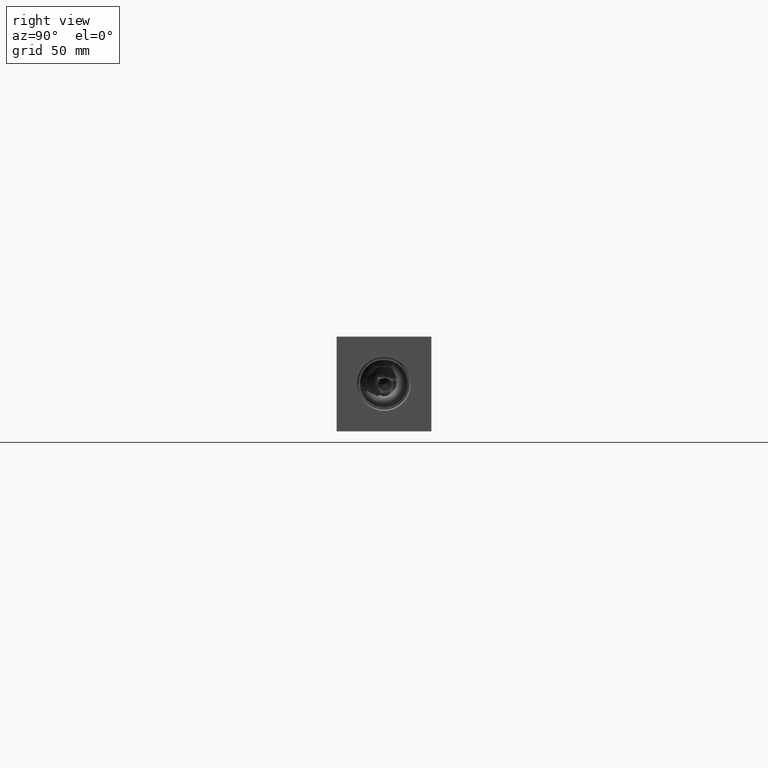
[diagram: clean part render]
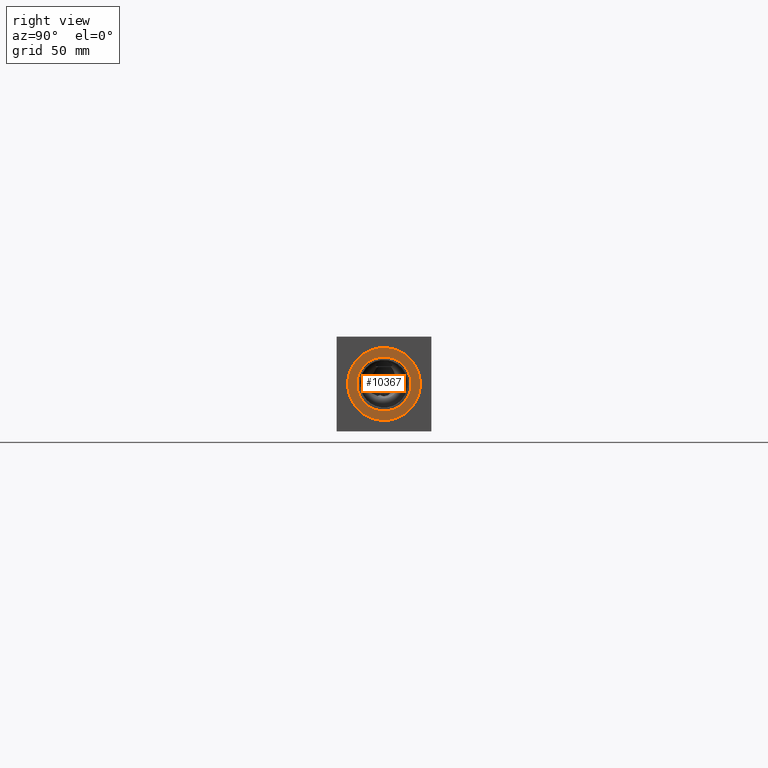
[diagram: same view with one face highlighted and labeled with its STEP entity id]
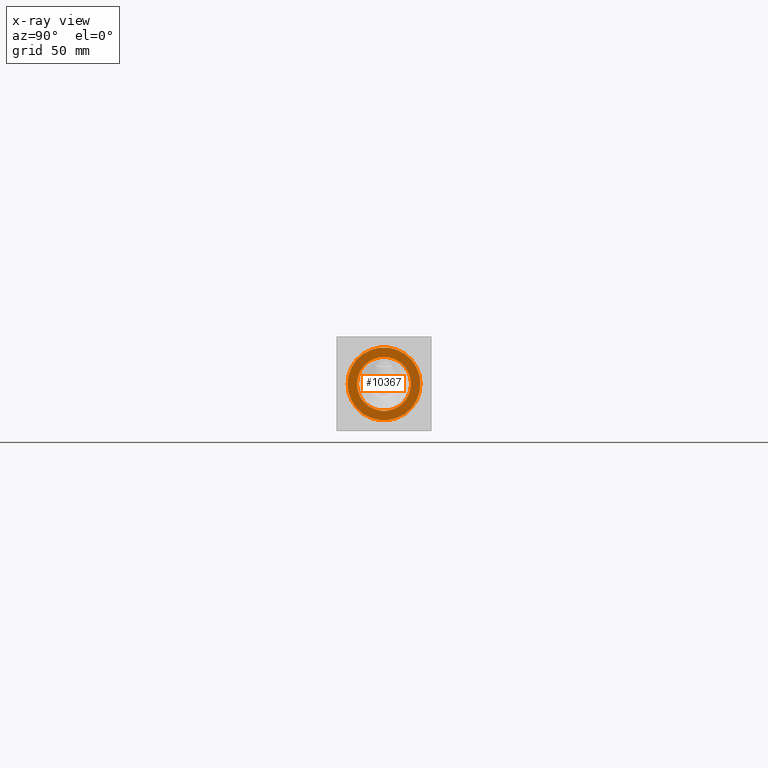
[diagram: x-ray of the same camera — body ghosted, the highlighted face saturated]
A machine part, right view. The second image highlights one B-rep face of the part: STEP entity #10367.
The next image is the same camera in x-ray: the body ghosted, the highlighted face saturated — about 0% of this face is hidden behind the body in this view.
In plain terms, the highlighted planar face has unit normal (1, 0, 0).
Its self-contained STEP definition (entity closure, byte-faithful):
#565=CIRCLE('',#11160,29.2862);
#566=CIRCLE('',#11161,29.2862);
#567=CIRCLE('',#11162,21.7551);
#646=FACE_BOUND('',#2248,.T.);
#1638=FACE_OUTER_BOUND('',#2247,.T.);
#2247=EDGE_LOOP('',(#9164,#9165));
#2248=EDGE_LOOP('',(#9166));
#4810=VERTEX_POINT('',#18721);
#4811=VERTEX_POINT('',#18722);
#4812=VERTEX_POINT('',#18725);
#6280=EDGE_CURVE('',#4810,#4811,#565,.T.);
#6281=EDGE_CURVE('',#4811,#4810,#566,.T.);
#6282=EDGE_CURVE('',#4812,#4812,#567,.T.);
#9164=ORIENTED_EDGE('',*,*,#6280,.T.);
#9165=ORIENTED_EDGE('',*,*,#6281,.T.);
#9166=ORIENTED_EDGE('',*,*,#6282,.F.);
#9515=PLANE('',#11159);
#10367=ADVANCED_FACE('',(#1638,#646),#9515,.T.);
#11159=AXIS2_PLACEMENT_3D('',#18720,#13489,#13490);
#11160=AXIS2_PLACEMENT_3D('',#18723,#13491,#13492);
#11161=AXIS2_PLACEMENT_3D('',#18724,#13493,#13494);
#11162=AXIS2_PLACEMENT_3D('',#18726,#13495,#13496);
#13489=DIRECTION('center_axis',(1.,0.,0.));
#13490=DIRECTION('ref_axis',(0.,1.,0.));
#13491=DIRECTION('center_axis',(1.,0.,0.));
#13492=DIRECTION('ref_axis',(0.,1.,0.));
#13493=DIRECTION('center_axis',(1.,0.,0.));
#13494=DIRECTION('ref_axis',(0.,1.,0.));
#13495=DIRECTION('center_axis',(1.,0.,0.));
#13496=DIRECTION('ref_axis',(0.,1.,0.));
#18720=CARTESIAN_POINT('Origin',(577.0626,38.1,38.1));
#18721=CARTESIAN_POINT('',(577.0626,67.3862,38.1));
#18722=CARTESIAN_POINT('',(577.0626,8.8138,38.1));
#18723=CARTESIAN_POINT('Origin',(577.0626,38.1,38.1));
#18724=CARTESIAN_POINT('Origin',(577.0626,38.1,38.1));
#18725=CARTESIAN_POINT('',(577.0626,16.3449,38.1));
#18726=CARTESIAN_POINT('Origin',(577.0626,38.1,38.1));